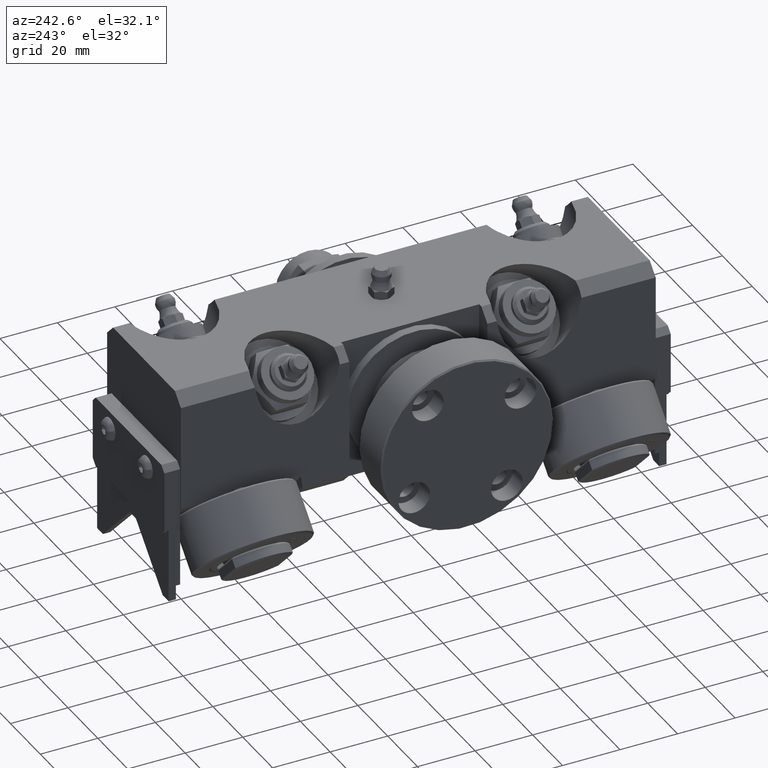
[diagram: clean part render]
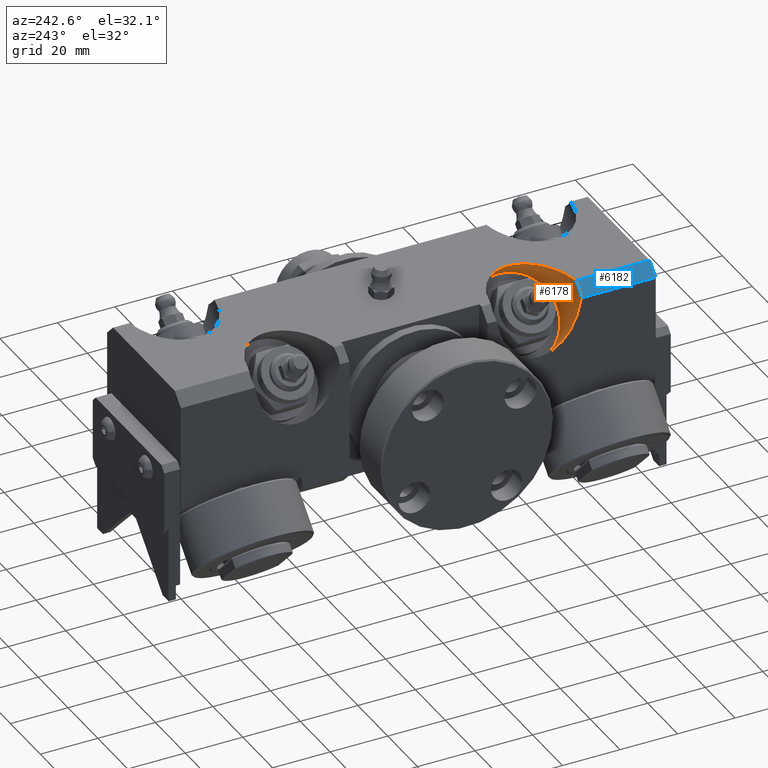
[diagram: same view with the hole feature highlighted: cylindrical wall and planar end face, labeled with their STEP entity ids]
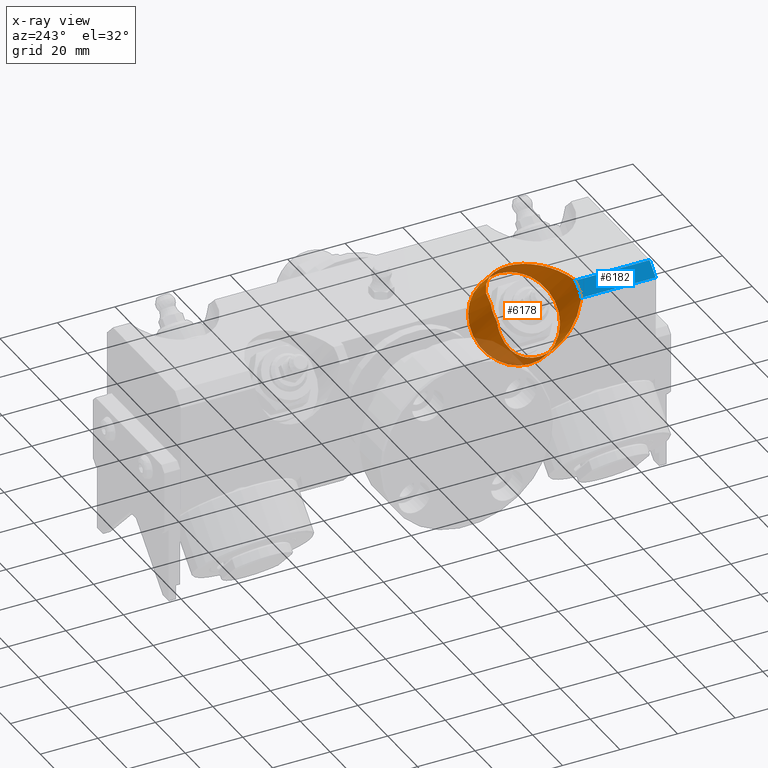
[diagram: x-ray of the same camera — body ghosted, the hole faces saturated]
A machine part, auxiliary view. The highlighted faces form one hole feature of diameter 30 mm: the cylindrical wall (entity #6178, orange) and its adjacent planar end face (entity #6182, blue) — they share a circular edge in the B-rep.
The next image is the same camera in x-ray (body ghosted, the hole faces saturated) — the bore reads through the body.
Wall:
#378=ELLIPSE('',#6968,21.2132034355964,15.);
#379=ELLIPSE('',#6969,21.2132034355964,15.);
#386=ELLIPSE('',#7023,21.2132034355964,15.);
#701=FACE_OUTER_BOUND('',#1060,.T.);
#1060=EDGE_LOOP('',(#4475,#4476,#4477,#4478,#4479,#4480,#4481,#4482));
#1455=CIRCLE('',#6939,15.);
#1493=CIRCLE('',#7024,15.);
#1494=CIRCLE('',#7025,15.);
#1982=LINE('',#10643,#2353);
#2353=VECTOR('',#7995,15.);
#2716=VERTEX_POINT('',#10008);
#2717=VERTEX_POINT('',#10010);
#2743=VERTEX_POINT('',#10544);
#2744=VERTEX_POINT('',#10546);
#2766=VERTEX_POINT('',#10640);
#2767=VERTEX_POINT('',#10642);
#3345=EDGE_CURVE('',#2716,#2717,#1455,.T.);
#3386=EDGE_CURVE('',#2743,#2744,#378,.T.);
#3387=EDGE_CURVE('',#2744,#2716,#379,.T.);
#3435=EDGE_CURVE('',#2717,#2766,#386,.T.);
#3436=EDGE_CURVE('',#2744,#2767,#1982,.T.);
#3437=EDGE_CURVE('',#2767,#2767,#1493,.T.);
#3438=EDGE_CURVE('',#2766,#2743,#1494,.T.);
#4475=ORIENTED_EDGE('',*,*,#3435,.F.);
#4476=ORIENTED_EDGE('',*,*,#3345,.F.);
#4477=ORIENTED_EDGE('',*,*,#3387,.F.);
#4478=ORIENTED_EDGE('',*,*,#3436,.T.);
#4479=ORIENTED_EDGE('',*,*,#3437,.F.);
#4480=ORIENTED_EDGE('',*,*,#3436,.F.);
#4481=ORIENTED_EDGE('',*,*,#3386,.F.);
#4482=ORIENTED_EDGE('',*,*,#3438,.F.);
#6055=CYLINDRICAL_SURFACE('',#7022,15.);
#6178=ADVANCED_FACE('',(#701),#6055,.F.);
#6939=AXIS2_PLACEMENT_3D('',#10011,#7793,#7794);
#6968=AXIS2_PLACEMENT_3D('',#10547,#7866,#7867);
#6969=AXIS2_PLACEMENT_3D('',#10548,#7868,#7869);
#7022=AXIS2_PLACEMENT_3D('',#10639,#7991,#7992);
#7023=AXIS2_PLACEMENT_3D('',#10641,#7993,#7994);
#7024=AXIS2_PLACEMENT_3D('',#10644,#7996,#7997);
#7025=AXIS2_PLACEMENT_3D('',#10645,#7998,#7999);
#7793=DIRECTION('center_axis',(0.707106781186548,0.,-0.707106781186548));
#7794=DIRECTION('ref_axis',(0.707106781186547,0.,0.707106781186547));
#7866=DIRECTION('center_axis',(1.,0.,-3.58859967555606E-16));
#7867=DIRECTION('ref_axis',(4.18691322315673E-16,0.,1.));
#7868=DIRECTION('center_axis',(1.,0.,-3.58859967555606E-16));
#7869=DIRECTION('ref_axis',(4.18691322315673E-16,0.,1.));
#7991=DIRECTION('center_axis',(-0.707106781186548,0.,0.707106781186548));
#7992=DIRECTION('ref_axis',(0.707106781186547,0.,0.707106781186547));
#7993=DIRECTION('center_axis',(8.97149918889015E-17,0.,-1.));
#7994=DIRECTION('ref_axis',(1.,0.,1.04672830578918E-16));
#7995=DIRECTION('',(0.707106781186547,0.,-0.707106781186547));
#7996=DIRECTION('center_axis',(-0.707106781186548,0.,0.707106781186548));
#7997=DIRECTION('ref_axis',(0.707106781186547,0.,0.707106781186547));
#7998=DIRECTION('center_axis',(0.707106781186548,0.,-0.707106781186548));
#7999=DIRECTION('ref_axis',(0.707106781186547,0.,0.707106781186547));
#10008=CARTESIAN_POINT('',(-24.75,-27.2739906288227,20.714));
#10010=CARTESIAN_POINT('',(-20.714,-27.2739906288227,24.75));
#10011=CARTESIAN_POINT('Origin',(-22.732,-42.,22.732));
#10544=CARTESIAN_POINT('',(-24.75,-56.7260093711772,20.714));
#10546=CARTESIAN_POINT('',(-24.75,-42.,3.53679656440357));
#10547=CARTESIAN_POINT('Origin',(-24.75,-42.,24.75));
#10548=CARTESIAN_POINT('Origin',(-24.75,-42.,24.75));
#10639=CARTESIAN_POINT('Origin',(-15.3250564670709,-42.,15.3250564670709));
#10640=CARTESIAN_POINT('',(-20.714,-56.7260093711772,24.75));
#10641=CARTESIAN_POINT('Origin',(-24.75,-42.,24.75));
#10642=CARTESIAN_POINT('',(-18.52471465194,-42.,-2.6884887836564));
#10643=CARTESIAN_POINT('',(-25.9316581848691,-42.,4.7184547492727));
#10644=CARTESIAN_POINT('Origin',(-7.91811293414182,-42.,7.91811293414182));
#10645=CARTESIAN_POINT('Origin',(-22.732,-42.,22.732));
End face:
#514=PLANE('',#7035);
#705=FACE_OUTER_BOUND('',#1066,.T.);
#1066=EDGE_LOOP('',(#4512,#4513,#4514,#4515));
#1494=CIRCLE('',#7025,15.);
#1964=LINE('',#10545,#2335);
#1971=LINE('',#10570,#2342);
#1984=LINE('',#10653,#2355);
#2335=VECTOR('',#7865,10.);
#2342=VECTOR('',#7896,10.);
#2355=VECTOR('',#8011,10.);
#2742=VERTEX_POINT('',#10542);
#2743=VERTEX_POINT('',#10544);
#2749=VERTEX_POINT('',#10568);
#2766=VERTEX_POINT('',#10640);
#3385=EDGE_CURVE('',#2743,#2742,#1964,.T.);
#3399=EDGE_CURVE('',#2742,#2749,#1971,.T.);
#3438=EDGE_CURVE('',#2766,#2743,#1494,.T.);
#3442=EDGE_CURVE('',#2749,#2766,#1984,.T.);
#4512=ORIENTED_EDGE('',*,*,#3438,.T.);
#4513=ORIENTED_EDGE('',*,*,#3385,.T.);
#4514=ORIENTED_EDGE('',*,*,#3399,.T.);
#4515=ORIENTED_EDGE('',*,*,#3442,.T.);
#6182=ADVANCED_FACE('',(#705),#514,.T.);
#7025=AXIS2_PLACEMENT_3D('',#10645,#7998,#7999);
#7035=AXIS2_PLACEMENT_3D('',#10671,#8025,#8026);
#7865=DIRECTION('',(0.,-1.,0.));
#7896=DIRECTION('',(0.707106781186548,0.,0.707106781186548));
#7998=DIRECTION('center_axis',(0.707106781186548,0.,-0.707106781186548));
#7999=DIRECTION('ref_axis',(0.707106781186547,0.,0.707106781186547));
#8011=DIRECTION('',(0.,1.,0.));
#8025=DIRECTION('center_axis',(-0.707106781186548,0.,0.707106781186548));
#8026=DIRECTION('ref_axis',(0.707106781186548,0.,0.707106781186548));
#10542=CARTESIAN_POINT('',(-24.75,-82.5,20.714));
#10544=CARTESIAN_POINT('',(-24.75,-56.7260093711772,20.714));
#10545=CARTESIAN_POINT('',(-24.75,0.,20.714));
#10568=CARTESIAN_POINT('',(-20.714,-82.5,24.75));
#10570=CARTESIAN_POINT('',(-22.732,-82.5,22.732));
#10640=CARTESIAN_POINT('',(-20.714,-56.7260093711772,24.75));
#10645=CARTESIAN_POINT('Origin',(-22.732,-42.,22.732));
#10653=CARTESIAN_POINT('',(-20.714,0.,24.75));
#10671=CARTESIAN_POINT('Origin',(-22.732,0.,22.732));